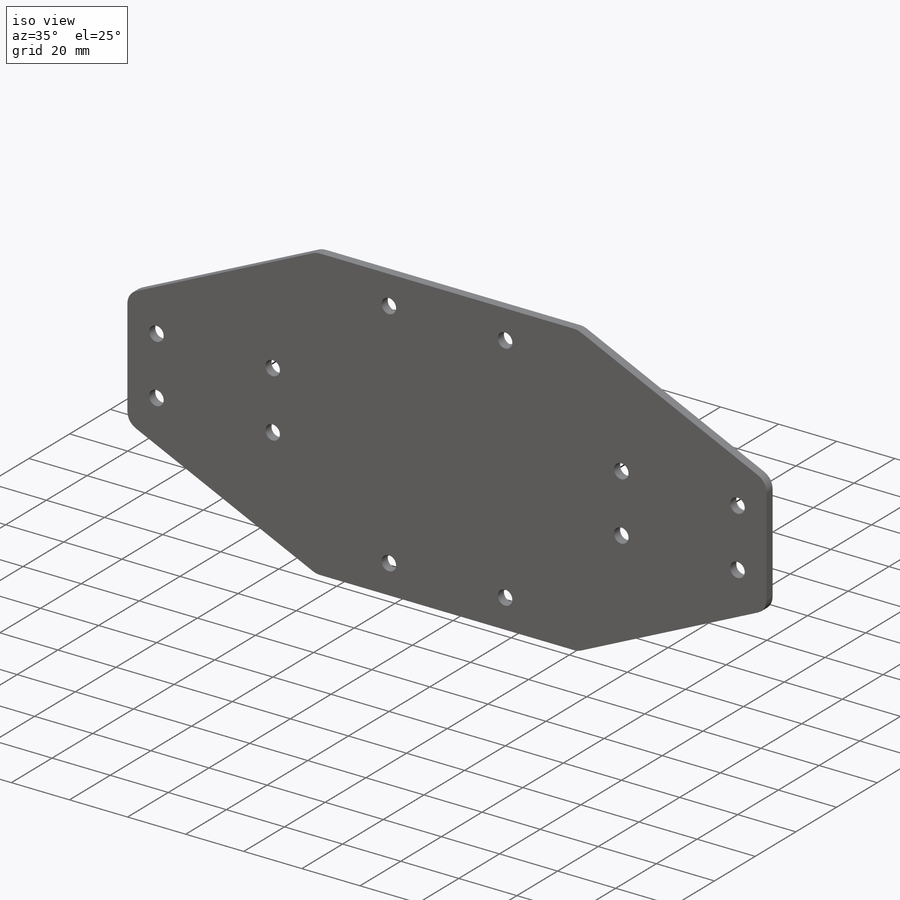
[diagram: iso view]
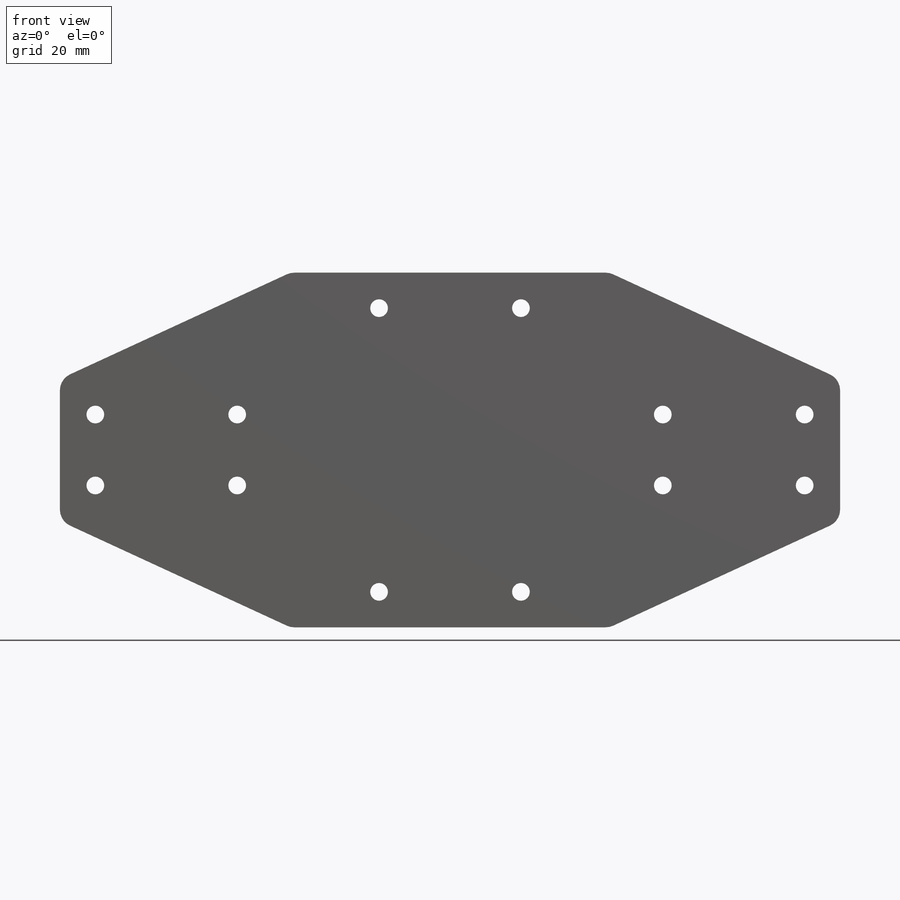
[diagram: front view]
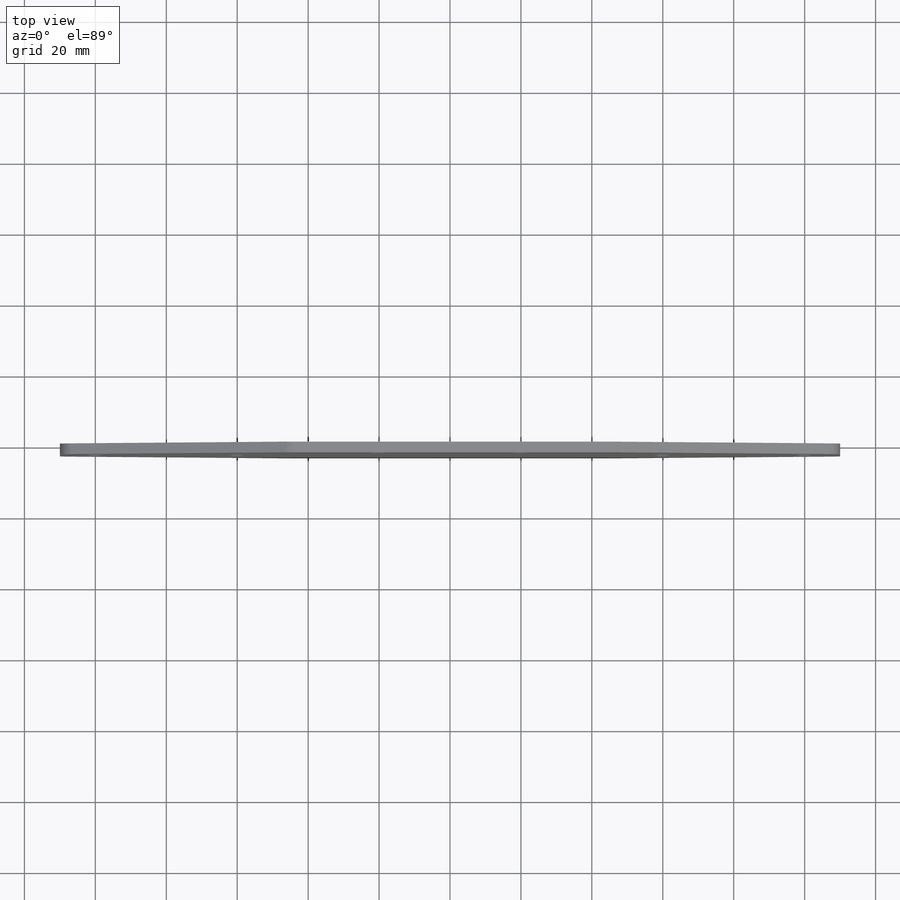
[diagram: top view]
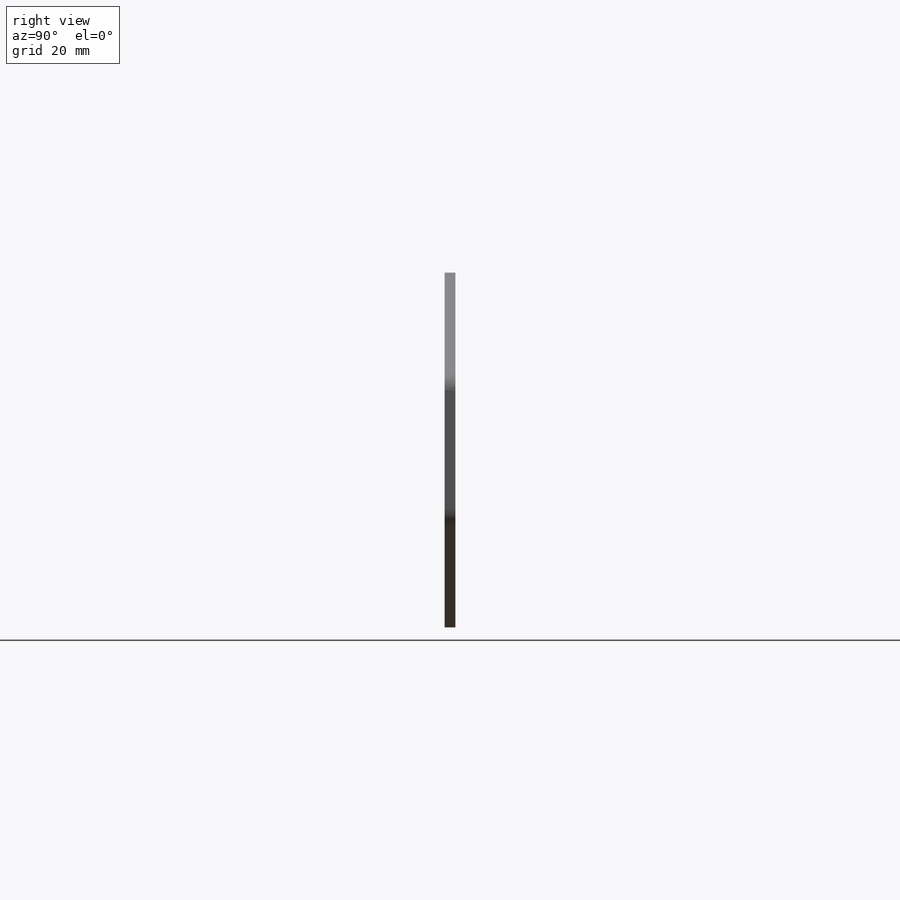
[diagram: right view]
SOLIDWORKS PART (.sldprt)
format: sldprt  version: not decoded by parser v0  size: 211,968 bytes
history: native  units: mm
features: sketch x3, cut_extrude x2, mirror x2, material x1, extrude x1, pattern_linear x1, fillet x1 (+13 scaffold rows collapsed)
feature tree (24):
  scaffold x13  (default folders/planes/origin — collapsed)
  material  "Material <not specified>"
  sketch  "Sketch1"  dims[c1.D5=5.0mm c1.D6=5.0mm c1.D7=5.0mm c1.D1=40.0mm c1.D2=90.0mm c1.D3=220.0mm c1.D4=100.0mm c2.D6=10.0mm c2.D7=10.0mm]
  extrude  "Boss-Extrude1"  Depth=3mm
  sketch  "Sketch2"  dims[c1.D1=5.0mm c1.D2=5.0mm c1.D3=5.0mm c2.D2=10.0mm c2.D3=60.0mm]
  cut_extrude  "Cut-Extrude1"  [1 undecoded]
  pattern_linear  "LPattern1"  Count1=2 Count2=2 Spacing1=40mm Spacing2=20mm
  mirror  "Mirror1"
  sketch  "Sketch3"  dims[c1.D1=5.0mm c1.D2=5.0mm c1.D3=5.0mm c1.D4=5.0mm c2.D3=5.0mm c2.D2=30.0mm c3.D3=15.0mm c3.D4=20.0mm c4.D3=10.0mm]
  cut_extrude  "Cut-Extrude2"  [1 undecoded]
  mirror  "Mirror2"
  fillet  "Fillet1"  Radius=5mm
decode coverage: 6 of 10 modeling features carry decoded parameters
note: 2 parameter values undecoded
note: suppression state not decoded; provenance and decode notes live in map.json
